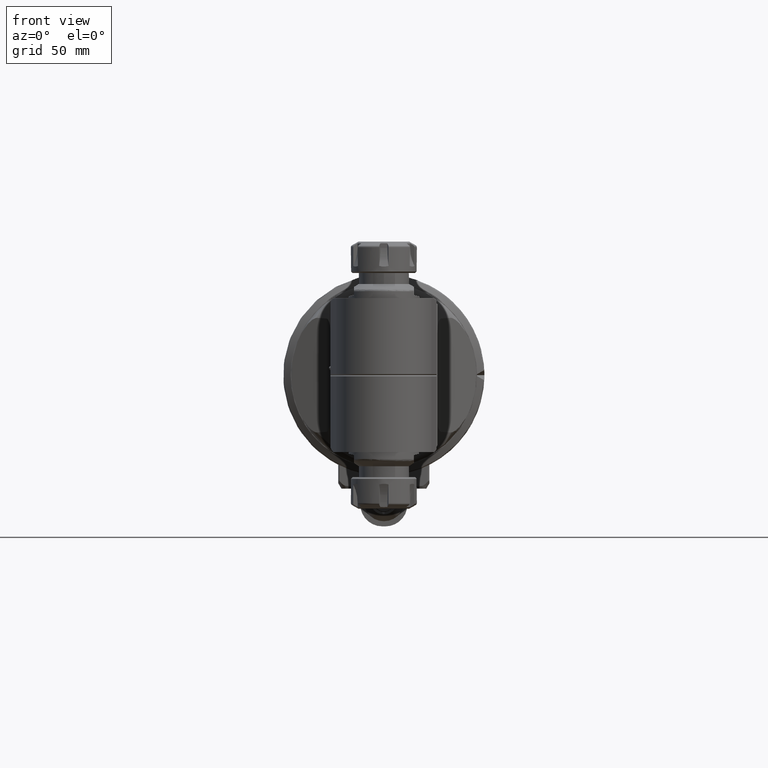
[diagram: clean part render]
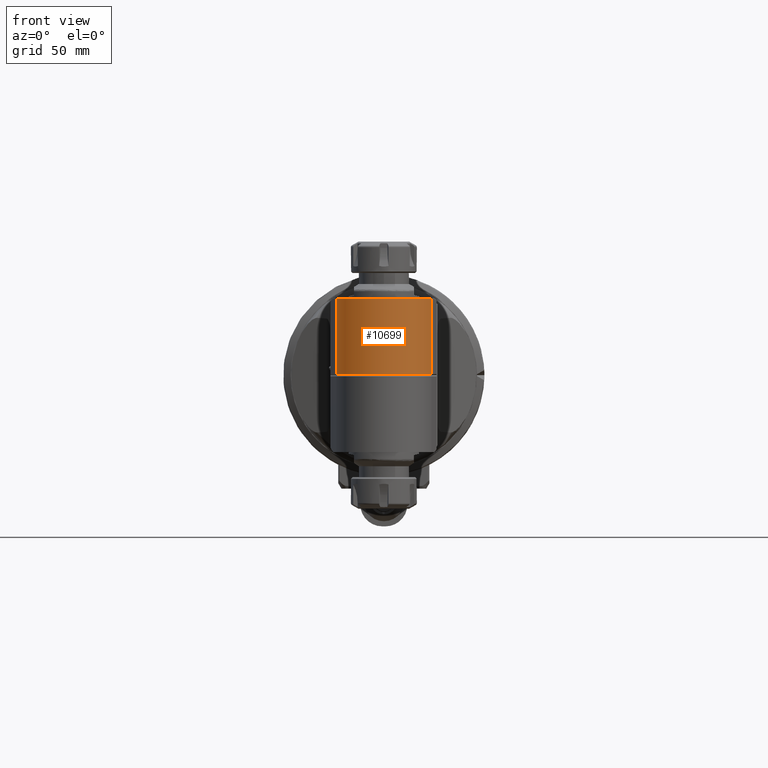
[diagram: same view with one face highlighted and labeled with its STEP entity id]
A machine part, front view. The second image highlights one B-rep face of the part: STEP entity #10699.
In plain terms, the highlighted cylindrical surface (partial cylindrical patch) has radius 31 mm, axis along (-0, 0, -1).
Its self-contained STEP definition (entity closure, byte-faithful):
#1076=FACE_OUTER_BOUND('',#1770,.T.);
#1770=EDGE_LOOP('',(#7371,#7372,#7373,#7374));
#2517=LINE('',#16468,#3192);
#2519=LINE('',#16532,#3194);
#3192=VECTOR('',#12878,48.33431457505);
#3194=VECTOR('',#12890,48.33431457505);
#3888=CIRCLE('',#11480,31.);
#3890=CIRCLE('',#11483,31.);
#4524=VERTEX_POINT('',#16452);
#4526=VERTEX_POINT('',#16457);
#4528=VERTEX_POINT('',#16470);
#4542=VERTEX_POINT('',#16530);
#5649=EDGE_CURVE('',#4526,#4524,#2517,.T.);
#5650=EDGE_CURVE('',#4526,#4528,#3888,.T.);
#5665=EDGE_CURVE('',#4542,#4524,#3890,.T.);
#5666=EDGE_CURVE('',#4542,#4528,#2519,.T.);
#7371=ORIENTED_EDGE('',*,*,#5649,.T.);
#7372=ORIENTED_EDGE('',*,*,#5665,.F.);
#7373=ORIENTED_EDGE('',*,*,#5666,.T.);
#7374=ORIENTED_EDGE('',*,*,#5650,.F.);
#10517=CYLINDRICAL_SURFACE('',#11482,31.);
#10699=ADVANCED_FACE('',(#1076),#10517,.T.);
#11480=AXIS2_PLACEMENT_3D('',#16471,#12881,#12882);
#11482=AXIS2_PLACEMENT_3D('',#16529,#12886,#12887);
#11483=AXIS2_PLACEMENT_3D('',#16531,#12888,#12889);
#12878=DIRECTION('',(1.370094591287E-13,1.,3.770700243188E-14));
#12881=DIRECTION('center_axis',(0.,-1.,0.));
#12882=DIRECTION('ref_axis',(0.207911690817109,0.,-0.978147600733944));
#12886=DIRECTION('center_axis',(0.,1.,0.));
#12887=DIRECTION('ref_axis',(1.,0.,0.));
#12888=DIRECTION('center_axis',(0.,1.,0.));
#12889=DIRECTION('ref_axis',(1.,0.,0.));
#12890=DIRECTION('',(-1.45241787145E-13,-1.,4.042661079441E-14));
#16452=CARTESIAN_POINT('',(211.9452624154,-0.6656854249491,-30.32257562275));
#16457=CARTESIAN_POINT('',(211.9452624153,-49.,-30.32257562275));
#16468=CARTESIAN_POINT('',(211.9452624153,-49.,-30.32257562275));
#16470=CARTESIAN_POINT('',(211.9452624153,-49.,30.32257562275));
#16471=CARTESIAN_POINT('Origin',(205.5,-49.,0.));
#16529=CARTESIAN_POINT('Origin',(205.5,49.,0.));
#16530=CARTESIAN_POINT('',(211.9452624154,-0.6656854249494,30.32257562275));
#16531=CARTESIAN_POINT('Origin',(205.5,-0.6656854249491,0.));
#16532=CARTESIAN_POINT('',(211.9452624154,-0.6656854249494,30.32257562275));